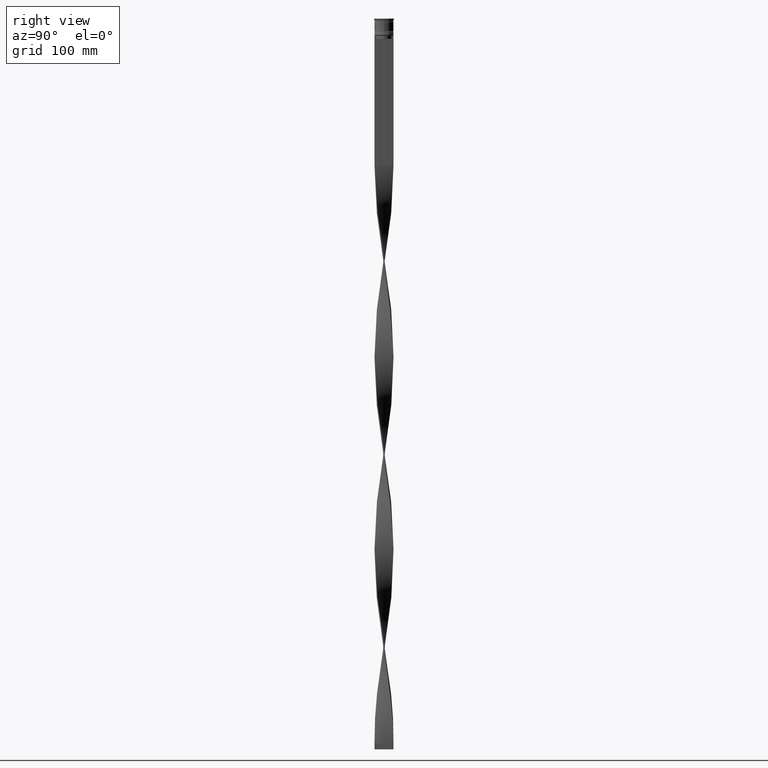
[diagram: clean part render]
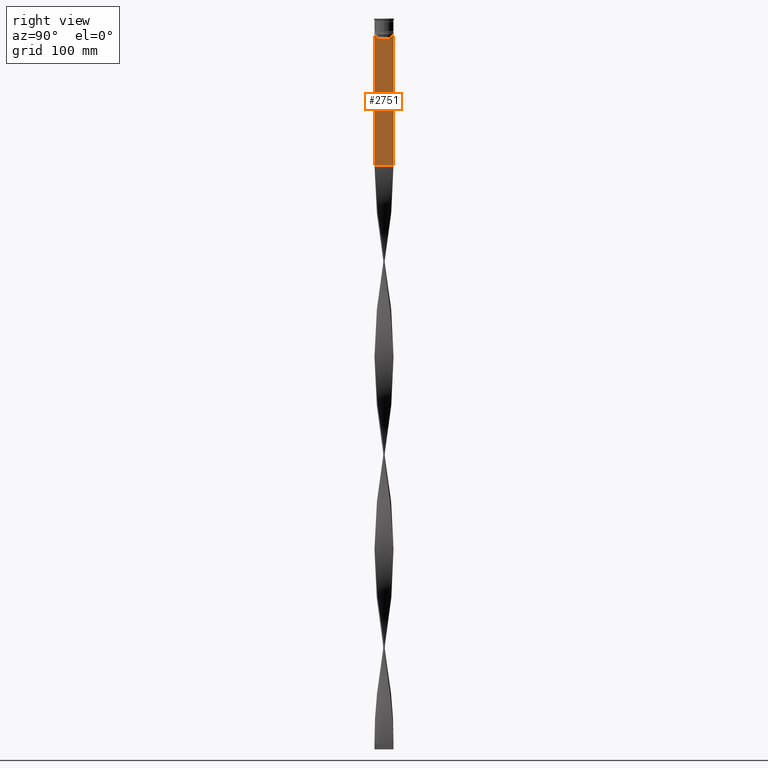
[diagram: same view with one face highlighted and labeled with its STEP entity id]
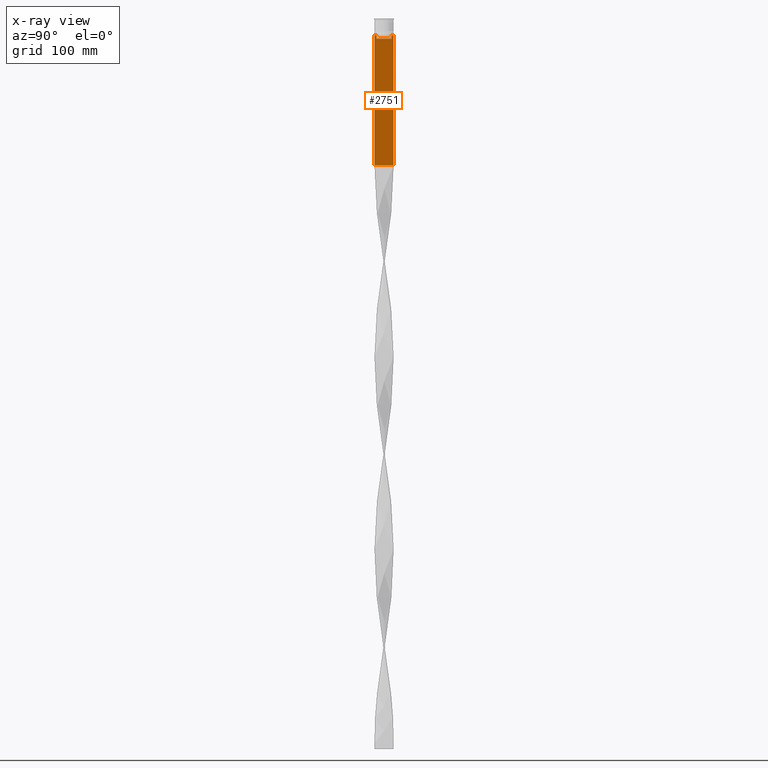
[diagram: x-ray of the same camera — body ghosted, the highlighted face saturated]
A machine part, right view. The second image highlights one B-rep face of the part: STEP entity #2751.
The next image is the same camera in x-ray: the body ghosted, the highlighted face saturated — about 0% of this face is hidden behind the body in this view.
In plain terms, the highlighted planar face has unit normal (-1, 0, 0).
Its self-contained STEP definition (entity closure, byte-faithful):
#69 = DIRECTION ( 'NONE',  ( 0.000000000000000000, 0.000000000000000000, 1.000000000000000000 ) ) ;
#71 = LINE ( 'NONE', #3177, #4303 ) ;
#202 = LINE ( 'NONE', #3239, #4103 ) ;
#240 = CARTESIAN_POINT ( 'NONE',  ( 0.5000000000000001110, 6.881860213634098500, -14.00000000000000178 ) ) ;
#265 = VERTEX_POINT ( 'NONE', #2935 ) ;
#302 = ORIENTED_EDGE ( 'NONE', *, *, #3199, .F. ) ;
#360 = ORIENTED_EDGE ( 'NONE', *, *, #4200, .T. ) ;
#446 = EDGE_CURVE ( 'NONE', #3689, #3385, #1852, .T. ) ;
#448 = CARTESIAN_POINT ( 'NONE',  ( 0.5000000000000001110, -6.547597841511247019, -14.33335192438652150 ) ) ;
#449 = EDGE_CURVE ( 'NONE', #2073, #1518, #71, .T. ) ;
#452 = CARTESIAN_POINT ( 'NONE',  ( 0.5000000000000001110, 7.999999999999996447, -14.00000000000000178 ) ) ;
#468 = LINE ( 'NONE', #3144, #1403 ) ;
#600 = EDGE_CURVE ( 'NONE', #1577, #1420, #1572, .T. ) ;
#611 = CARTESIAN_POINT ( 'NONE',  ( 0.5000000000000001110, 6.380438856379708312, 0.000000000000000000 ) ) ;
#622 = EDGE_LOOP ( 'NONE', ( #3266, #4429, #3187, #2669, #1922, #360, #1260, #4252, #2098, #4077, #302, #4459 ) ) ;
#623 = VECTOR ( 'NONE', #2641, 1000.000000000000000 ) ;
#736 = EDGE_CURVE ( 'NONE', #2891, #4016, #1365, .T. ) ;
#751 = CARTESIAN_POINT ( 'NONE',  ( 0.5000000000000001110, -8.000000000000003553, -14.00000000000000178 ) ) ;
#867 = LINE ( 'NONE', #4340, #1422 ) ;
#871 = CARTESIAN_POINT ( 'NONE',  ( 0.5000000000000001110, 6.881860213634098500, -14.00000000000000178 ) ) ;
#889 = CARTESIAN_POINT ( 'NONE',  ( 0.5000000000000001110, 7.999999999999996447, -123.0000000000000000 ) ) ;
#1186 = CARTESIAN_POINT ( 'NONE',  ( 0.5000000000000001110, -6.881860213634098500, -14.00000000000000178 ) ) ;
#1206 = LINE ( 'NONE', #2598, #623 ) ;
#1211 = VERTEX_POINT ( 'NONE', #889 ) ;
#1215 = DIRECTION ( 'NONE',  ( 0.000000000000000000, -1.000000000000000000, 0.000000000000000000 ) ) ;
#1231 = DIRECTION ( 'NONE',  ( 0.000000000000000000, 0.000000000000000000, -1.000000000000000000 ) ) ;
#1260 = ORIENTED_EDGE ( 'NONE', *, *, #2940, .T. ) ;
#1319 = VECTOR ( 'NONE', #2462, 1000.000000000000000 ) ;
#1365 = LINE ( 'NONE', #3835, #1319 ) ;
#1403 = VECTOR ( 'NONE', #1754, 1000.000000000000000 ) ;
#1420 = VERTEX_POINT ( 'NONE', #3624 ) ;
#1422 = VECTOR ( 'NONE', #4319, 1000.000000000000000 ) ;
#1431 = B_SPLINE_CURVE_WITH_KNOTS ( 'NONE', 3,
 ( #871, #2248, #1567, #4344 ),
 .UNSPECIFIED., .F., .F.,
 ( 4, 4 ),
 ( 0.01172465562756038263, 0.01243276816391822651 ),
 .UNSPECIFIED. ) ;
#1460 = B_SPLINE_CURVE_WITH_KNOTS ( 'NONE', 3,
 ( #2553, #448, #2534, #1186 ),
 .UNSPECIFIED., .F., .F.,
 ( 4, 4 ),
 ( 0.02996184199614751464, 0.03067452609193705923 ),
 .UNSPECIFIED. ) ;
#1497 = VECTOR ( 'NONE', #3688, 1000.000000000000000 ) ;
#1518 = VERTEX_POINT ( 'NONE', #3212 ) ;
#1567 = CARTESIAN_POINT ( 'NONE',  ( 0.5000000000000001110, 6.547597841304911626, -14.33335192459222718 ) ) ;
#1572 = LINE ( 'NONE', #611, #2120 ) ;
#1577 = VERTEX_POINT ( 'NONE', #3959 ) ;
#1579 = CARTESIAN_POINT ( 'NONE',  ( 0.5000000000000001110, -8.000000000000003553, -123.0000000000000000 ) ) ;
#1754 = DIRECTION ( 'NONE',  ( 0.000000000000000000, -1.000000000000000000, 0.000000000000000000 ) ) ;
#1807 = DIRECTION ( 'NONE',  ( -0.000000000000000000, -0.000000000000000000, 1.000000000000000000 ) ) ;
#1837 = LINE ( 'NONE', #3572, #2284 ) ;
#1852 = LINE ( 'NONE', #751, #1970 ) ;
#1863 = CARTESIAN_POINT ( 'NONE',  ( 0.5000000000000001110, -6.380438856379708312, -17.00000000000000000 ) ) ;
#1909 = EDGE_CURVE ( 'NONE', #4016, #3739, #468, .T. ) ;
#1922 = ORIENTED_EDGE ( 'NONE', *, *, #449, .T. ) ;
#1970 = VECTOR ( 'NONE', #3152, 1000.000000000000000 ) ;
#1988 = EDGE_CURVE ( 'NONE', #1420, #2073, #1206, .T. ) ;
#1991 = EDGE_CURVE ( 'NONE', #3739, #1577, #1431, .T. ) ;
#2073 = VERTEX_POINT ( 'NONE', #1863 ) ;
#2098 = ORIENTED_EDGE ( 'NONE', *, *, #3506, .T. ) ;
#2120 = VECTOR ( 'NONE', #1231, 1000.000000000000000 ) ;
#2182 = CARTESIAN_POINT ( 'NONE',  ( 0.5000000000000001110, 7.884161337770806632, -14.00000000000000178 ) ) ;
#2200 = DIRECTION ( 'NONE',  ( 0.000000000000000000, 0.000000000000000000, -1.000000000000000000 ) ) ;
#2248 = CARTESIAN_POINT ( 'NONE',  ( 0.5000000000000001110, 6.714736947114692711, -14.16668390704818847 ) ) ;
#2284 = VECTOR ( 'NONE', #2200, 1000.000000000000000 ) ;
#2401 = FACE_OUTER_BOUND ( 'NONE', #622, .T. ) ;
#2462 = DIRECTION ( 'NONE',  ( 0.000000000000000000, -1.000000000000000000, 0.000000000000000000 ) ) ;
#2534 = CARTESIAN_POINT ( 'NONE',  ( 0.5000000000000001110, -6.714736947305993908, -14.16668390685738821 ) ) ;
#2553 = CARTESIAN_POINT ( 'NONE',  ( 0.5000000000000001110, -6.380438856379708312, -14.50000000000000000 ) ) ;
#2598 = CARTESIAN_POINT ( 'NONE',  ( 0.5000000000000001110, 6.399999999999999467, -17.00000000000000000 ) ) ;
#2641 = DIRECTION ( 'NONE',  ( 0.000000000000000000, -1.000000000000000000, 0.000000000000000000 ) ) ;
#2649 = AXIS2_PLACEMENT_3D ( 'NONE', #3080, #3102, #69 ) ;
#2669 = ORIENTED_EDGE ( 'NONE', *, *, #1988, .T. ) ;
#2678 = VERTEX_POINT ( 'NONE', #1579 ) ;
#2751 = ADVANCED_FACE ( 'NONE', ( #2401 ), #3881, .F. ) ;
#2891 = VERTEX_POINT ( 'NONE', #452 ) ;
#2935 = CARTESIAN_POINT ( 'NONE',  ( 0.5000000000000001110, -6.881860213634098500, -14.00000000000000178 ) ) ;
#2940 = EDGE_CURVE ( 'NONE', #265, #3689, #202, .T. ) ;
#2972 = CARTESIAN_POINT ( 'NONE',  ( 0.5000000000000001110, -8.000000000000003553, -123.0000000000000000 ) ) ;
#3080 = CARTESIAN_POINT ( 'NONE',  ( 0.5000000000000001110, -8.000000000000003553, 2.031219541881394530 ) ) ;
#3102 = DIRECTION ( 'NONE',  ( -1.000000000000000000, 0.000000000000000000, 0.000000000000000000 ) ) ;
#3144 = CARTESIAN_POINT ( 'NONE',  ( 0.5000000000000001110, -8.000000000000003553, -14.00000000000000178 ) ) ;
#3152 = DIRECTION ( 'NONE',  ( 0.000000000000000000, -1.000000000000000000, 0.000000000000000000 ) ) ;
#3177 = CARTESIAN_POINT ( 'NONE',  ( 0.5000000000000001110, -6.380438856379708312, 0.000000000000000000 ) ) ;
#3187 = ORIENTED_EDGE ( 'NONE', *, *, #600, .T. ) ;
#3199 = EDGE_CURVE ( 'NONE', #2891, #1211, #1837, .T. ) ;
#3212 = CARTESIAN_POINT ( 'NONE',  ( 0.5000000000000001110, -6.380438856379708312, -14.50000000000000000 ) ) ;
#3239 = CARTESIAN_POINT ( 'NONE',  ( 0.5000000000000001110, -8.000000000000003553, -14.00000000000000178 ) ) ;
#3248 = CARTESIAN_POINT ( 'NONE',  ( 0.5000000000000001110, -8.000000000000003553, -14.00000000000000178 ) ) ;
#3266 = ORIENTED_EDGE ( 'NONE', *, *, #1909, .T. ) ;
#3385 = VERTEX_POINT ( 'NONE', #3248 ) ;
#3506 = EDGE_CURVE ( 'NONE', #3385, #2678, #867, .T. ) ;
#3540 = EDGE_CURVE ( 'NONE', #2678, #1211, #3710, .T. ) ;
#3572 = CARTESIAN_POINT ( 'NONE',  ( 0.5000000000000001110, 7.999999999999996447, 2.031219541881394530 ) ) ;
#3624 = CARTESIAN_POINT ( 'NONE',  ( 0.5000000000000001110, 6.380438856379708312, -17.00000000000000000 ) ) ;
#3688 = DIRECTION ( 'NONE',  ( 0.000000000000000000, 1.000000000000000000, 0.000000000000000000 ) ) ;
#3689 = VERTEX_POINT ( 'NONE', #4061 ) ;
#3710 = LINE ( 'NONE', #2972, #1497 ) ;
#3739 = VERTEX_POINT ( 'NONE', #240 ) ;
#3835 = CARTESIAN_POINT ( 'NONE',  ( 0.5000000000000001110, -8.000000000000003553, -14.00000000000000178 ) ) ;
#3881 = PLANE ( 'NONE',  #2649 ) ;
#3959 = CARTESIAN_POINT ( 'NONE',  ( 0.5000000000000001110, 6.380438856379708312, -14.50000000000000000 ) ) ;
#4016 = VERTEX_POINT ( 'NONE', #2182 ) ;
#4061 = CARTESIAN_POINT ( 'NONE',  ( 0.5000000000000001110, -7.884161337770806632, -14.00000000000000178 ) ) ;
#4077 = ORIENTED_EDGE ( 'NONE', *, *, #3540, .T. ) ;
#4103 = VECTOR ( 'NONE', #1215, 1000.000000000000000 ) ;
#4200 = EDGE_CURVE ( 'NONE', #1518, #265, #1460, .T. ) ;
#4252 = ORIENTED_EDGE ( 'NONE', *, *, #446, .T. ) ;
#4303 = VECTOR ( 'NONE', #1807, 1000.000000000000000 ) ;
#4319 = DIRECTION ( 'NONE',  ( 0.000000000000000000, 0.000000000000000000, -1.000000000000000000 ) ) ;
#4340 = CARTESIAN_POINT ( 'NONE',  ( 0.5000000000000001110, -8.000000000000003553, 2.031219541881394530 ) ) ;
#4344 = CARTESIAN_POINT ( 'NONE',  ( 0.5000000000000001110, 6.380438856379708312, -14.50000000000000000 ) ) ;
#4429 = ORIENTED_EDGE ( 'NONE', *, *, #1991, .T. ) ;
#4459 = ORIENTED_EDGE ( 'NONE', *, *, #736, .T. ) ;